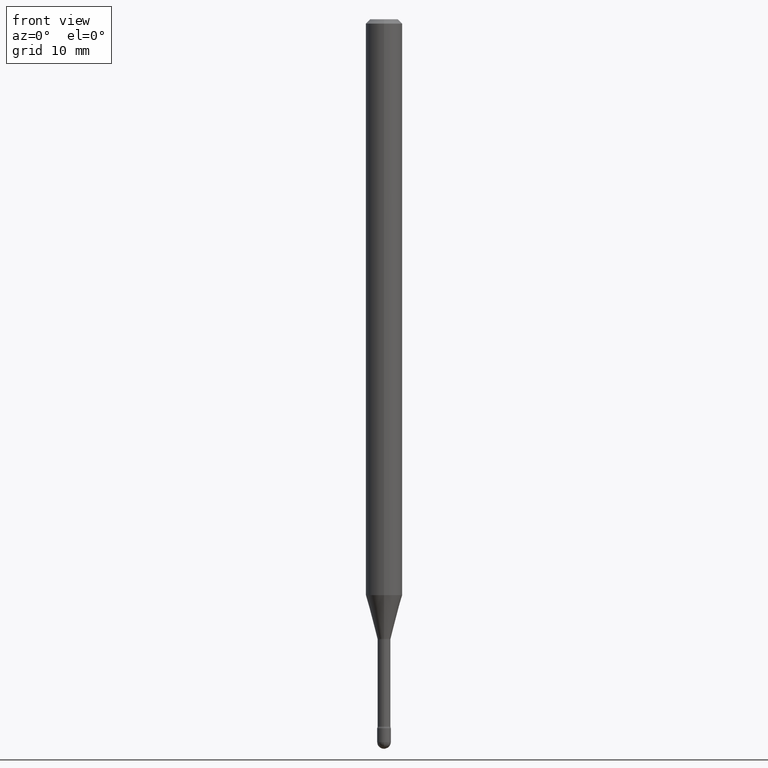
[diagram: clean part render]
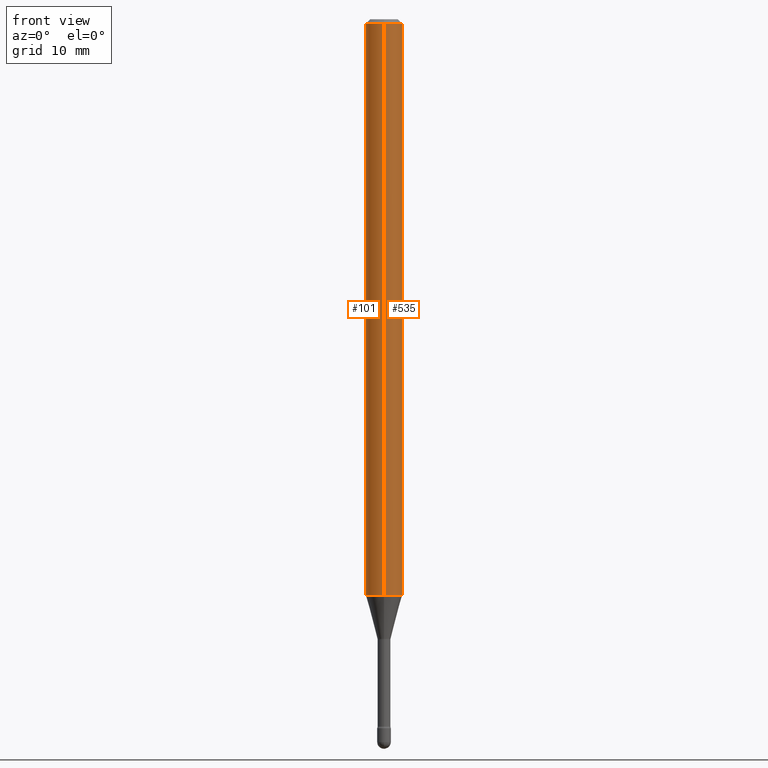
[diagram: same view with one multi-face feature highlighted, each face labeled with its STEP entity id]
A machine part, front view. The highlighted faces form ONE feature: a constant-radius fillet chain: 2 tangent blend faces with common blend radius 1.5875 mm. The faces share edges in the B-rep.
Their STEP definitions:
[1] entity #535 (Cylinder):
#13 = EDGE_CURVE ( 'NONE', #99, #441, #413, .T. ) ;
#25 = CARTESIAN_POINT ( 'NONE',  ( -4.364351673553912750E-16, -0.06250000000000005551, -0.01499999999999986587 ) ) ;
#42 = VECTOR ( 'NONE', #488, 39.37007874015748143 ) ;
#53 = ORIENTED_EDGE ( 'NONE', *, *, #170, .F. ) ;
#63 = ORIENTED_EDGE ( 'NONE', *, *, #378, .F. ) ;
#68 = AXIS2_PLACEMENT_3D ( 'NONE', #459, #381, #206 ) ;
#99 = VERTEX_POINT ( 'NONE', #211 ) ;
#129 = CYLINDRICAL_SURFACE ( 'NONE', #523, 0.06250000000000000000 ) ;
#164 = CARTESIAN_POINT ( 'NONE',  ( 4.825436867881536545E-29, -6.889512687067067726E-15, -1.973225147374217947 ) ) ;
#170 = EDGE_CURVE ( 'NONE', #398, #441, #339, .T. ) ;
#179 = VECTOR ( 'NONE', #247, 39.37007874015748143 ) ;
#187 = LINE ( 'NONE', #452, #179 ) ;
#189 = ORIENTED_EDGE ( 'NONE', *, *, #385, .T. ) ;
#190 = CARTESIAN_POINT ( 'NONE',  ( 4.440892098501111311E-16, 0.06249999999999995143, -0.01500000000000030129 ) ) ;
#206 = DIRECTION ( 'NONE',  ( -6.982962677686265922E-15, -1.000000000000000000, 3.483106191921935554E-15 ) ) ;
#210 = DIRECTION ( 'NONE',  ( -2.445456806742390166E-29, 3.491498522728124281E-15, 1.000000000000000000 ) ) ;
#211 = CARTESIAN_POINT ( 'NONE',  ( 4.440892098501106381E-16, 0.06249999999999308192, -1.973225147374218169 ) ) ;
#215 = CIRCLE ( 'NONE', #522, 0.06250000000000000000 ) ;
#247 = DIRECTION ( 'NONE',  ( -2.445456806742389886E-29, 3.491498522728124281E-15, 1.000000000000000000 ) ) ;
#254 = CARTESIAN_POINT ( 'NONE',  ( -1.169113584055446105E-44, 1.669184350826100908E-30, 4.780733988912460139E-16 ) ) ;
#288 = CARTESIAN_POINT ( 'NONE',  ( 4.440892098500625669E-16, 0.06250000000000000000, 2.598547412207382957E-16 ) ) ;
#308 = DIRECTION ( 'NONE',  ( -2.445456806742390166E-29, 3.491498522728124281E-15, 1.000000000000000000 ) ) ;
#334 = ORIENTED_EDGE ( 'NONE', *, *, #13, .T. ) ;
#339 = CIRCLE ( 'NONE', #68, 0.06250000000000000000 ) ;
#351 = CARTESIAN_POINT ( 'NONE',  ( -4.364351673553435489E-16, -0.06250000000000691114, -1.973225147374217503 ) ) ;
#378 = EDGE_CURVE ( 'NONE', #492, #398, #187, .T. ) ;
#381 = DIRECTION ( 'NONE',  ( -2.445456806742390166E-29, 3.491498522728124281E-15, 1.000000000000000000 ) ) ;
#385 = EDGE_CURVE ( 'NONE', #492, #99, #215, .T. ) ;
#398 = VERTEX_POINT ( 'NONE', #25 ) ;
#413 = LINE ( 'NONE', #288, #42 ) ;
#441 = VERTEX_POINT ( 'NONE', #190 ) ;
#447 = EDGE_LOOP ( 'NONE', ( #189, #334, #53, #63 ) ) ;
#452 = CARTESIAN_POINT ( 'NONE',  ( -4.364351673553916201E-16, -0.06250000000000000000, 6.962920565617538308E-16 ) ) ;
#458 = DIRECTION ( 'NONE',  ( -6.982962677686265922E-15, -1.000000000000000000, 4.370956789862821150E-15 ) ) ;
#459 = CARTESIAN_POINT ( 'NONE',  ( 3.668185210113605428E-31, -5.237247784092215166E-17, -0.01500000000000008271 ) ) ;
#467 = DIRECTION ( 'NONE',  ( -6.982962677686265922E-15, -1.000000000000000000, 3.491498522728124676E-15 ) ) ;
#488 = DIRECTION ( 'NONE',  ( -2.445456806742389886E-29, 3.491498522728124281E-15, 1.000000000000000000 ) ) ;
#492 = VERTEX_POINT ( 'NONE', #351 ) ;
#515 = FACE_OUTER_BOUND ( 'NONE', #447, .T. ) ;
#522 = AXIS2_PLACEMENT_3D ( 'NONE', #164, #308, #458 ) ;
#523 = AXIS2_PLACEMENT_3D ( 'NONE', #254, #210, #467 ) ;
#535 = ADVANCED_FACE ( 'NONE', ( #515 ), #129, .T. ) ;
[2] entity #101 (Cylinder):
#1 = DIRECTION ( 'NONE',  ( -6.982962677686265922E-15, -1.000000000000000000, 3.483106191921935554E-15 ) ) ;
#13 = EDGE_CURVE ( 'NONE', #99, #441, #413, .T. ) ;
#25 = CARTESIAN_POINT ( 'NONE',  ( -4.364351673553912750E-16, -0.06250000000000005551, -0.01499999999999986587 ) ) ;
#29 = EDGE_CURVE ( 'NONE', #441, #398, #375, .T. ) ;
#42 = VECTOR ( 'NONE', #488, 39.37007874015748143 ) ;
#49 = DIRECTION ( 'NONE',  ( -2.445456806742390166E-29, 3.491498522728124281E-15, 1.000000000000000000 ) ) ;
#75 = CARTESIAN_POINT ( 'NONE',  ( 4.825436867881536545E-29, -6.889512687067067726E-15, -1.973225147374217947 ) ) ;
#99 = VERTEX_POINT ( 'NONE', #211 ) ;
#101 = ADVANCED_FACE ( 'NONE', ( #474 ), #394, .T. ) ;
#109 = DIRECTION ( 'NONE',  ( -2.445456806742390166E-29, 3.491498522728124281E-15, 1.000000000000000000 ) ) ;
#115 = CIRCLE ( 'NONE', #430, 0.06250000000000000000 ) ;
#119 = EDGE_CURVE ( 'NONE', #99, #492, #115, .T. ) ;
#133 = EDGE_LOOP ( 'NONE', ( #261, #298, #489, #219 ) ) ;
#166 = DIRECTION ( 'NONE',  ( -6.982962677686265922E-15, -1.000000000000000000, 4.370956789862821150E-15 ) ) ;
#179 = VECTOR ( 'NONE', #247, 39.37007874015748143 ) ;
#187 = LINE ( 'NONE', #452, #179 ) ;
#190 = CARTESIAN_POINT ( 'NONE',  ( 4.440892098501111311E-16, 0.06249999999999995143, -0.01500000000000030129 ) ) ;
#211 = CARTESIAN_POINT ( 'NONE',  ( 4.440892098501106381E-16, 0.06249999999999308192, -1.973225147374218169 ) ) ;
#214 = AXIS2_PLACEMENT_3D ( 'NONE', #336, #109, #329 ) ;
#219 = ORIENTED_EDGE ( 'NONE', *, *, #29, .F. ) ;
#247 = DIRECTION ( 'NONE',  ( -2.445456806742389886E-29, 3.491498522728124281E-15, 1.000000000000000000 ) ) ;
#261 = ORIENTED_EDGE ( 'NONE', *, *, #13, .F. ) ;
#263 = AXIS2_PLACEMENT_3D ( 'NONE', #371, #49, #1 ) ;
#288 = CARTESIAN_POINT ( 'NONE',  ( 4.440892098500625669E-16, 0.06250000000000000000, 2.598547412207382957E-16 ) ) ;
#298 = ORIENTED_EDGE ( 'NONE', *, *, #119, .T. ) ;
#329 = DIRECTION ( 'NONE',  ( -6.982962677686265922E-15, -1.000000000000000000, 3.491498522728124676E-15 ) ) ;
#336 = CARTESIAN_POINT ( 'NONE',  ( -1.169113584055446105E-44, 1.669184350826100908E-30, 4.780733988912460139E-16 ) ) ;
#351 = CARTESIAN_POINT ( 'NONE',  ( -4.364351673553435489E-16, -0.06250000000000691114, -1.973225147374217503 ) ) ;
#371 = CARTESIAN_POINT ( 'NONE',  ( 3.668185210113605428E-31, -5.237247784092215166E-17, -0.01500000000000008271 ) ) ;
#375 = CIRCLE ( 'NONE', #263, 0.06250000000000000000 ) ;
#378 = EDGE_CURVE ( 'NONE', #492, #398, #187, .T. ) ;
#394 = CYLINDRICAL_SURFACE ( 'NONE', #214, 0.06250000000000000000 ) ;
#398 = VERTEX_POINT ( 'NONE', #25 ) ;
#413 = LINE ( 'NONE', #288, #42 ) ;
#429 = DIRECTION ( 'NONE',  ( -2.445456806742390166E-29, 3.491498522728124281E-15, 1.000000000000000000 ) ) ;
#430 = AXIS2_PLACEMENT_3D ( 'NONE', #75, #429, #166 ) ;
#441 = VERTEX_POINT ( 'NONE', #190 ) ;
#452 = CARTESIAN_POINT ( 'NONE',  ( -4.364351673553916201E-16, -0.06250000000000000000, 6.962920565617538308E-16 ) ) ;
#474 = FACE_OUTER_BOUND ( 'NONE', #133, .T. ) ;
#488 = DIRECTION ( 'NONE',  ( -2.445456806742389886E-29, 3.491498522728124281E-15, 1.000000000000000000 ) ) ;
#489 = ORIENTED_EDGE ( 'NONE', *, *, #378, .T. ) ;
#492 = VERTEX_POINT ( 'NONE', #351 ) ;